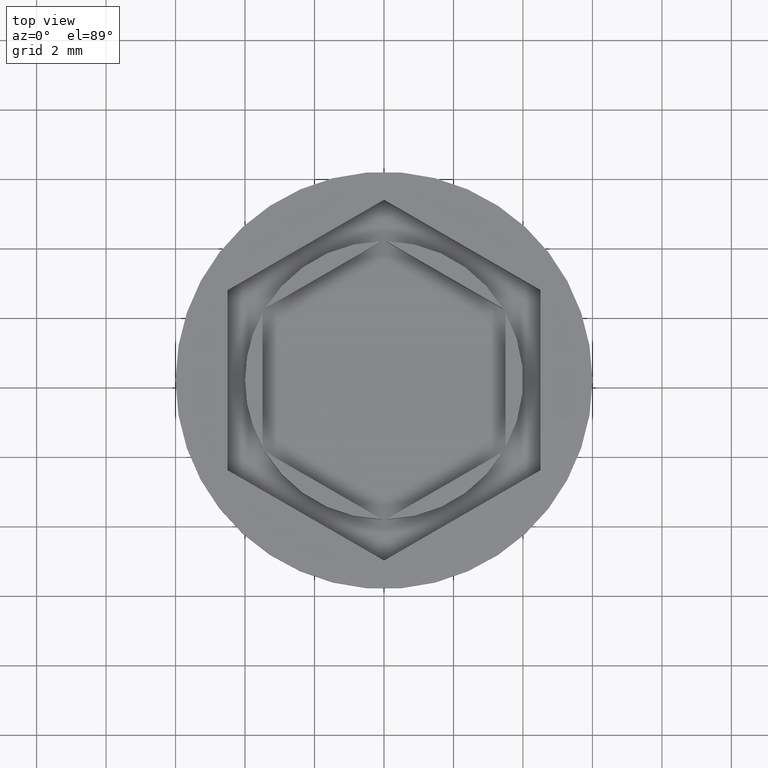
[diagram: clean part render]
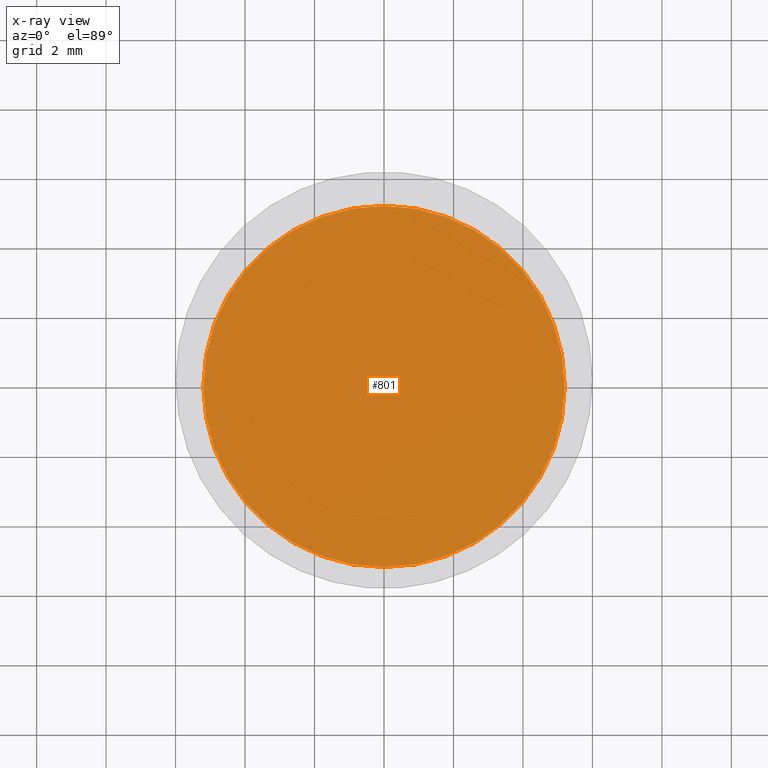
[diagram: x-ray — body ghosted, one internal face saturated and labeled with its STEP entity id]
A machine part, top view, then the same camera in x-ray: the body is ghosted and one INTERNAL B-rep face — a face not visible from any outside direction — is saturated and labeled: STEP entity #801.
In plain terms, the highlighted planar face has unit normal (0, 0, -1).
Its self-contained STEP definition (entity closure, byte-faithful):
#69 = EDGE_CURVE ( 'NONE', #1992, #1108, #1633, .T. ) ;
#134 = CARTESIAN_POINT ( 'NONE',  ( 0.000000000000000000, 0.000000000000000000, -10.50000000000000178 ) ) ;
#220 = CARTESIAN_POINT ( 'NONE',  ( 5.200000000000001066, 6.551860375438340681E-16, -10.50000000000000178 ) ) ;
#389 = AXIS2_PLACEMENT_3D ( 'NONE', #134, #743, #1979 ) ;
#391 = AXIS2_PLACEMENT_3D ( 'NONE', #708, #1180, #1485 ) ;
#433 = CARTESIAN_POINT ( 'NONE',  ( -5.200000000000001066, 0.000000000000000000, -10.50000000000000178 ) ) ;
#504 = EDGE_CURVE ( 'NONE', #1108, #1992, #1430, .T. ) ;
#595 = DIRECTION ( 'NONE',  ( -1.000000000000000000, 0.000000000000000000, 0.000000000000000000 ) ) ;
#636 = EDGE_LOOP ( 'NONE', ( #1442, #1293 ) ) ;
#708 = CARTESIAN_POINT ( 'NONE',  ( 0.000000000000000000, 0.000000000000000000, -10.50000000000000178 ) ) ;
#743 = DIRECTION ( 'NONE',  ( -0.000000000000000000, -0.000000000000000000, 1.000000000000000000 ) ) ;
#749 = AXIS2_PLACEMENT_3D ( 'NONE', #1801, #1643, #595 ) ;
#801 = ADVANCED_FACE ( 'NONE', ( #1962 ), #1195, .F. ) ;
#1108 = VERTEX_POINT ( 'NONE', #220 ) ;
#1180 = DIRECTION ( 'NONE',  ( 0.000000000000000000, 0.000000000000000000, -1.000000000000000000 ) ) ;
#1195 = PLANE ( 'NONE',  #391 ) ;
#1293 = ORIENTED_EDGE ( 'NONE', *, *, #504, .T. ) ;
#1430 = CIRCLE ( 'NONE', #389, 5.200000000000001066 ) ;
#1442 = ORIENTED_EDGE ( 'NONE', *, *, #69, .T. ) ;
#1485 = DIRECTION ( 'NONE',  ( -1.000000000000000000, 0.000000000000000000, -0.000000000000000000 ) ) ;
#1633 = CIRCLE ( 'NONE', #749, 5.200000000000001066 ) ;
#1643 = DIRECTION ( 'NONE',  ( -0.000000000000000000, -0.000000000000000000, 1.000000000000000000 ) ) ;
#1801 = CARTESIAN_POINT ( 'NONE',  ( 0.000000000000000000, 0.000000000000000000, -10.50000000000000178 ) ) ;
#1962 = FACE_OUTER_BOUND ( 'NONE', #636, .T. ) ;
#1979 = DIRECTION ( 'NONE',  ( -1.000000000000000000, 0.000000000000000000, 0.000000000000000000 ) ) ;
#1992 = VERTEX_POINT ( 'NONE', #433 ) ;